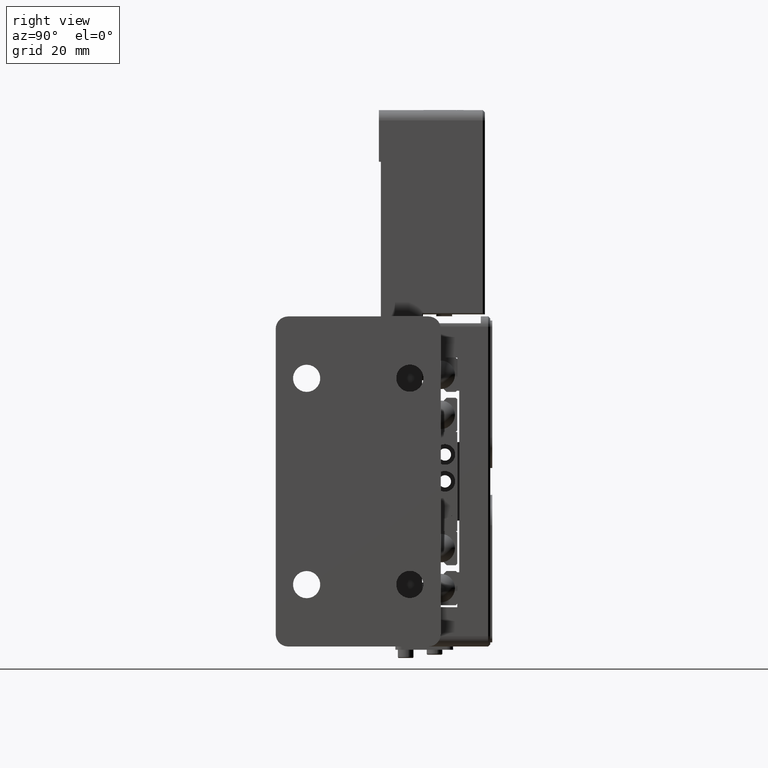
[diagram: clean part render]
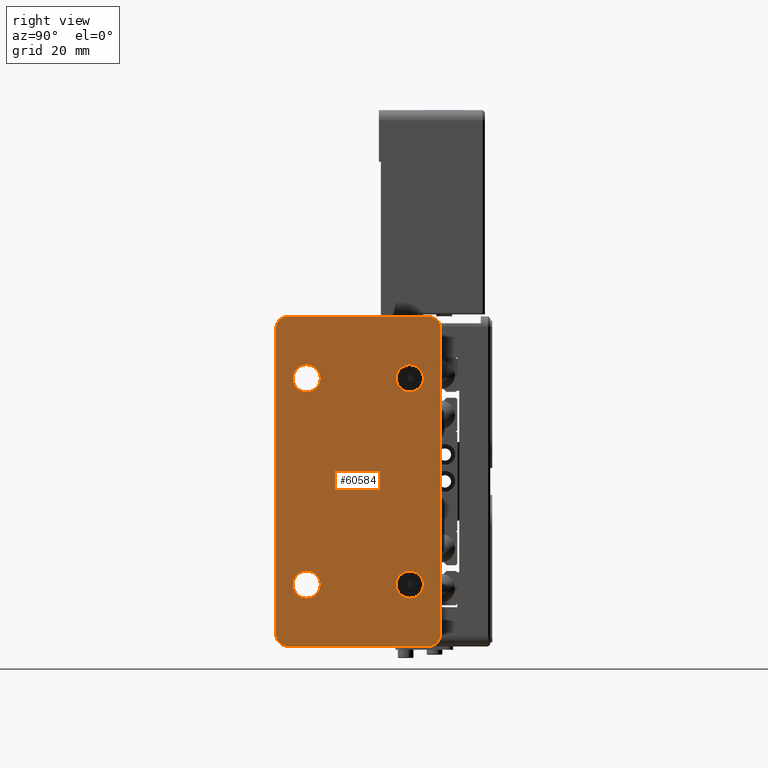
[diagram: same view with one face highlighted and labeled with its STEP entity id]
A machine part, right view. The second image highlights one B-rep face of the part: STEP entity #60584.
In plain terms, the highlighted planar face has unit normal (-1, -0, 0).
Its self-contained STEP definition (entity closure, byte-faithful):
#110 = EDGE_CURVE ( 'NONE', #48997, #32114, #14028, .T. ) ;
#151 = VECTOR ( 'NONE', #49959, 1000.000000000000000 ) ;
#416 = CARTESIAN_POINT ( 'NONE',  ( -12.49999999999999822, -6.938893903907228378E-15, 21.70000000000000284 ) ) ;
#755 = CARTESIAN_POINT ( 'NONE',  ( 12.49999999999999822, -6.938893903907228378E-15, -25.00000000000000000 ) ) ;
#987 = LINE ( 'NONE', #39867, #23303 ) ;
#1628 = VERTEX_POINT ( 'NONE', #27130 ) ;
#2229 = ORIENTED_EDGE ( 'NONE', *, *, #40906, .F. ) ;
#2564 = ORIENTED_EDGE ( 'NONE', *, *, #50122, .F. ) ;
#2676 = CARTESIAN_POINT ( 'NONE',  ( 12.49999999999999822, -6.938893903907228378E-15, -28.29999999999999716 ) ) ;
#2834 = AXIS2_PLACEMENT_3D ( 'NONE', #755, #24644, #20190 ) ;
#3120 = DIRECTION ( 'NONE',  ( 0.000000000000000000, 0.000000000000000000, 1.000000000000000000 ) ) ;
#3955 = VERTEX_POINT ( 'NONE', #40883 ) ;
#4061 = CARTESIAN_POINT ( 'NONE',  ( 12.49999999999999822, -6.938893903907228378E-15, -25.00000000000000000 ) ) ;
#4154 = DIRECTION ( 'NONE',  ( 1.000000000000000000, 0.000000000000000000, -0.000000000000000000 ) ) ;
#4227 = ORIENTED_EDGE ( 'NONE', *, *, #57404, .F. ) ;
#5014 = CIRCLE ( 'NONE', #15176, 3.299999999999997158 ) ;
#5629 = VERTEX_POINT ( 'NONE', #23974 ) ;
#7168 = CARTESIAN_POINT ( 'NONE',  ( -17.00000000000000000, 3.965082230804127755E-16, 37.00000000000000000 ) ) ;
#7601 = EDGE_CURVE ( 'NONE', #49861, #25425, #20919, .T. ) ;
#8532 = CIRCLE ( 'NONE', #13566, 3.000000000000002665 ) ;
#8555 = FACE_BOUND ( 'NONE', #31451, .T. ) ;
#8983 = DIRECTION ( 'NONE',  ( -0.000000000000000000, -1.000000000000000000, -0.000000000000000000 ) ) ;
#9343 = EDGE_LOOP ( 'NONE', ( #51467, #13681 ) ) ;
#11198 = DIRECTION ( 'NONE',  ( 0.000000000000000000, 0.000000000000000000, -1.000000000000000000 ) ) ;
#11582 = EDGE_CURVE ( 'NONE', #54206, #60113, #60587, .T. ) ;
#11826 = CARTESIAN_POINT ( 'NONE',  ( -12.49999999999999822, -6.938893903907228378E-15, -21.70000000000000284 ) ) ;
#11940 = CIRCLE ( 'NONE', #27174, 2.999999999999999112 ) ;
#12793 = CIRCLE ( 'NONE', #29082, 3.299999999999997158 ) ;
#13566 = AXIS2_PLACEMENT_3D ( 'NONE', #29982, #30909, #11198 ) ;
#13640 = FACE_OUTER_BOUND ( 'NONE', #25883, .T. ) ;
#13681 = ORIENTED_EDGE ( 'NONE', *, *, #40917, .F. ) ;
#14028 = LINE ( 'NONE', #47859, #59988 ) ;
#14334 = CARTESIAN_POINT ( 'NONE',  ( 20.00000000000000355, 7.072335265075964272E-15, 37.00000000000000000 ) ) ;
#14368 = ORIENTED_EDGE ( 'NONE', *, *, #22662, .F. ) ;
#15176 = AXIS2_PLACEMENT_3D ( 'NONE', #27328, #42334, #22546 ) ;
#15276 = DIRECTION ( 'NONE',  ( 0.000000000000000000, 1.000000000000000000, 0.000000000000000000 ) ) ;
#16048 = CARTESIAN_POINT ( 'NONE',  ( 17.00000000000000000, 3.673940397442059967E-15, 40.00000000000000000 ) ) ;
#16179 = CIRCLE ( 'NONE', #18211, 3.299999999999997158 ) ;
#17397 = AXIS2_PLACEMENT_3D ( 'NONE', #47260, #31605, #55882 ) ;
#17530 = DIRECTION ( 'NONE',  ( 0.000000000000000000, 0.000000000000000000, 1.000000000000000000 ) ) ;
#17651 = EDGE_CURVE ( 'NONE', #50420, #5629, #25460, .T. ) ;
#17919 = DIRECTION ( 'NONE',  ( -1.321694076934710155E-16, 1.000000000000000000, -0.000000000000000000 ) ) ;
#18211 = AXIS2_PLACEMENT_3D ( 'NONE', #51588, #22864, #3120 ) ;
#19354 = DIRECTION ( 'NONE',  ( -0.000000000000000000, -1.000000000000000000, -0.000000000000000000 ) ) ;
#19918 = CARTESIAN_POINT ( 'NONE',  ( 12.49999999999999822, -6.938893903907228378E-15, 21.70000000000000284 ) ) ;
#20190 = DIRECTION ( 'NONE',  ( 0.000000000000000000, 0.000000000000000000, 1.000000000000000000 ) ) ;
#20919 = LINE ( 'NONE', #24756, #151 ) ;
#21302 = DIRECTION ( 'NONE',  ( -0.000000000000000000, -0.000000000000000000, -1.000000000000000000 ) ) ;
#21343 = VERTEX_POINT ( 'NONE', #16048 ) ;
#21465 = EDGE_CURVE ( 'NONE', #48997, #49861, #31063, .T. ) ;
#21790 = DIRECTION ( 'NONE',  ( -1.000000000000000000, -1.321694076934710155E-16, 0.000000000000000000 ) ) ;
#22377 = DIRECTION ( 'NONE',  ( 1.000000000000000000, 1.321694076934710155E-16, 0.000000000000000000 ) ) ;
#22546 = DIRECTION ( 'NONE',  ( 0.000000000000000000, 0.000000000000000000, 1.000000000000000000 ) ) ;
#22662 = EDGE_CURVE ( 'NONE', #23669, #1628, #54268, .T. ) ;
#22812 = EDGE_LOOP ( 'NONE', ( #29782, #2229 ) ) ;
#22864 = DIRECTION ( 'NONE',  ( -0.000000000000000000, -1.000000000000000000, -0.000000000000000000 ) ) ;
#23303 = VECTOR ( 'NONE', #59324, 1000.000000000000000 ) ;
#23669 = VERTEX_POINT ( 'NONE', #416 ) ;
#23974 = CARTESIAN_POINT ( 'NONE',  ( 20.00000000000000355, 7.041140626651450083E-15, -37.00000000000000000 ) ) ;
#24644 = DIRECTION ( 'NONE',  ( -0.000000000000000000, -1.000000000000000000, -0.000000000000000000 ) ) ;
#24733 = VERTEX_POINT ( 'NONE', #54944 ) ;
#24756 = CARTESIAN_POINT ( 'NONE',  ( -20.00000000000000000, 0.000000000000000000, 40.00000000000000000 ) ) ;
#24847 = EDGE_CURVE ( 'NONE', #24733, #37660, #51033, .T. ) ;
#25425 = VERTEX_POINT ( 'NONE', #37897 ) ;
#25460 = LINE ( 'NONE', #40122, #54426 ) ;
#25883 = EDGE_LOOP ( 'NONE', ( #26882, #43480, #63097, #44398, #2564, #4227, #59365, #36729 ) ) ;
#26882 = ORIENTED_EDGE ( 'NONE', *, *, #21465, .F. ) ;
#27130 = CARTESIAN_POINT ( 'NONE',  ( -12.49999999999999822, -6.938893903907228378E-15, 28.29999999999999716 ) ) ;
#27174 = AXIS2_PLACEMENT_3D ( 'NONE', #7168, #41585, #21790 ) ;
#27328 = CARTESIAN_POINT ( 'NONE',  ( -12.49999999999999822, -6.938893903907228378E-15, -25.00000000000000000 ) ) ;
#27476 = AXIS2_PLACEMENT_3D ( 'NONE', #52659, #8983, #43080 ) ;
#28350 = DIRECTION ( 'NONE',  ( -0.000000000000000000, -1.000000000000000000, -0.000000000000000000 ) ) ;
#28736 = DIRECTION ( 'NONE',  ( -0.000000000000000000, -1.000000000000000000, -0.000000000000000000 ) ) ;
#28916 = DIRECTION ( 'NONE',  ( -1.000000000000000000, -1.836970198721029688E-16, 0.000000000000000000 ) ) ;
#29082 = AXIS2_PLACEMENT_3D ( 'NONE', #31851, #28350, #17530 ) ;
#29242 = CARTESIAN_POINT ( 'NONE',  ( -20.00000000000000000, 0.000000000000000000, 40.00000000000000000 ) ) ;
#29782 = ORIENTED_EDGE ( 'NONE', *, *, #24847, .F. ) ;
#29982 = CARTESIAN_POINT ( 'NONE',  ( 17.00000000000000000, 6.796789735267811767E-15, 37.00000000000000000 ) ) ;
#30909 = DIRECTION ( 'NONE',  ( -0.000000000000000000, 1.000000000000000000, -0.000000000000000000 ) ) ;
#30918 = EDGE_CURVE ( 'NONE', #36890, #3955, #12793, .T. ) ;
#30996 = CARTESIAN_POINT ( 'NONE',  ( -20.00000000000000000, -1.982541115402064617E-16, -37.00000000000000000 ) ) ;
#31063 = CIRCLE ( 'NONE', #48426, 2.999999999999999112 ) ;
#31451 = EDGE_LOOP ( 'NONE', ( #60494, #14368 ) ) ;
#31605 = DIRECTION ( 'NONE',  ( -0.000000000000000000, -1.000000000000000000, -0.000000000000000000 ) ) ;
#31851 = CARTESIAN_POINT ( 'NONE',  ( -12.49999999999999822, -6.938893903907228378E-15, -25.00000000000000000 ) ) ;
#32114 = VERTEX_POINT ( 'NONE', #58359 ) ;
#35491 = AXIS2_PLACEMENT_3D ( 'NONE', #53872, #15276, #45237 ) ;
#36714 = CARTESIAN_POINT ( 'NONE',  ( -17.00000000000000000, 0.000000000000000000, -37.00000000000000000 ) ) ;
#36729 = ORIENTED_EDGE ( 'NONE', *, *, #7601, .F. ) ;
#36890 = VERTEX_POINT ( 'NONE', #11826 ) ;
#37660 = VERTEX_POINT ( 'NONE', #19918 ) ;
#37897 = CARTESIAN_POINT ( 'NONE',  ( -20.00000000000000000, -7.222237291452134449E-32, 37.00000000000000000 ) ) ;
#39143 = FACE_BOUND ( 'NONE', #22812, .T. ) ;
#39867 = CARTESIAN_POINT ( 'NONE',  ( 0.000000000000000000, 5.510910596163087583E-16, 40.00000000000000000 ) ) ;
#40122 = CARTESIAN_POINT ( 'NONE',  ( 20.00000000000000000, 7.347880794884118356E-15, 40.00000000000000000 ) ) ;
#40786 = EDGE_CURVE ( 'NONE', #5629, #32114, #49786, .T. ) ;
#40883 = CARTESIAN_POINT ( 'NONE',  ( -12.49999999999999822, -6.938893903907228378E-15, -28.29999999999999716 ) ) ;
#40906 = EDGE_CURVE ( 'NONE', #37660, #24733, #16179, .T. ) ;
#40917 = EDGE_CURVE ( 'NONE', #3955, #36890, #5014, .T. ) ;
#41585 = DIRECTION ( 'NONE',  ( -1.321694076934710155E-16, 1.000000000000000000, 0.000000000000000000 ) ) ;
#42192 = EDGE_CURVE ( 'NONE', #25425, #50871, #11940, .T. ) ;
#42334 = DIRECTION ( 'NONE',  ( -0.000000000000000000, -1.000000000000000000, -0.000000000000000000 ) ) ;
#42679 = FACE_BOUND ( 'NONE', #61775, .T. ) ;
#43080 = DIRECTION ( 'NONE',  ( 0.000000000000000000, 0.000000000000000000, 1.000000000000000000 ) ) ;
#43480 = ORIENTED_EDGE ( 'NONE', *, *, #110, .T. ) ;
#43942 = PLANE ( 'NONE',  #56188 ) ;
#44398 = ORIENTED_EDGE ( 'NONE', *, *, #17651, .F. ) ;
#44589 = CIRCLE ( 'NONE', #2834, 3.299999999999997158 ) ;
#45237 = DIRECTION ( 'NONE',  ( 0.000000000000000000, 0.000000000000000000, 1.000000000000000000 ) ) ;
#45422 = CARTESIAN_POINT ( 'NONE',  ( 12.49999999999999822, -6.938893903907228378E-15, -21.70000000000000284 ) ) ;
#47054 = ORIENTED_EDGE ( 'NONE', *, *, #11582, .F. ) ;
#47260 = CARTESIAN_POINT ( 'NONE',  ( 12.49999999999999822, -6.938893903907228378E-15, 25.00000000000000000 ) ) ;
#47859 = CARTESIAN_POINT ( 'NONE',  ( 0.000000000000000000, 5.510910596163087583E-16, -40.00000000000000000 ) ) ;
#47927 = CIRCLE ( 'NONE', #27476, 3.299999999999997158 ) ;
#48237 = DIRECTION ( 'NONE',  ( 0.000000000000000000, 0.000000000000000000, 1.000000000000000000 ) ) ;
#48426 = AXIS2_PLACEMENT_3D ( 'NONE', #36714, #17919, #22377 ) ;
#48437 = EDGE_CURVE ( 'NONE', #60113, #54206, #44589, .T. ) ;
#48559 = ORIENTED_EDGE ( 'NONE', *, *, #48437, .F. ) ;
#48997 = VERTEX_POINT ( 'NONE', #51229 ) ;
#49786 = CIRCLE ( 'NONE', #35491, 3.000000000000002665 ) ;
#49861 = VERTEX_POINT ( 'NONE', #30996 ) ;
#49959 = DIRECTION ( 'NONE',  ( 0.000000000000000000, 0.000000000000000000, 1.000000000000000000 ) ) ;
#50122 = EDGE_CURVE ( 'NONE', #21343, #50420, #8532, .T. ) ;
#50420 = VERTEX_POINT ( 'NONE', #14334 ) ;
#50871 = VERTEX_POINT ( 'NONE', #52535 ) ;
#51033 = CIRCLE ( 'NONE', #17397, 3.299999999999997158 ) ;
#51229 = CARTESIAN_POINT ( 'NONE',  ( -17.00000000000000000, 2.755455298081543792E-16, -40.00000000000000000 ) ) ;
#51467 = ORIENTED_EDGE ( 'NONE', *, *, #30918, .F. ) ;
#51588 = CARTESIAN_POINT ( 'NONE',  ( 12.49999999999999822, -6.938893903907228378E-15, 25.00000000000000000 ) ) ;
#52535 = CARTESIAN_POINT ( 'NONE',  ( -17.00000000000000000, 4.737996413483607916E-16, 40.00000000000000000 ) ) ;
#52559 = DIRECTION ( 'NONE',  ( -1.836970198721029688E-16, 1.000000000000000000, 0.000000000000000000 ) ) ;
#52659 = CARTESIAN_POINT ( 'NONE',  ( -12.49999999999999822, -6.938893903907228378E-15, 25.00000000000000000 ) ) ;
#52692 = CARTESIAN_POINT ( 'NONE',  ( -12.49999999999999822, -6.938893903907228378E-15, 25.00000000000000000 ) ) ;
#53872 = CARTESIAN_POINT ( 'NONE',  ( 17.00000000000000000, 6.938893903907228378E-15, -37.00000000000000000 ) ) ;
#54206 = VERTEX_POINT ( 'NONE', #45422 ) ;
#54268 = CIRCLE ( 'NONE', #62417, 3.299999999999997158 ) ;
#54426 = VECTOR ( 'NONE', #21302, 1000.000000000000000 ) ;
#54944 = CARTESIAN_POINT ( 'NONE',  ( 12.49999999999999822, -6.938893903907228378E-15, 28.29999999999999716 ) ) ;
#55882 = DIRECTION ( 'NONE',  ( 0.000000000000000000, 0.000000000000000000, 1.000000000000000000 ) ) ;
#56188 = AXIS2_PLACEMENT_3D ( 'NONE', #29242, #52559, #28916 ) ;
#57404 = EDGE_CURVE ( 'NONE', #50871, #21343, #987, .T. ) ;
#57634 = DIRECTION ( 'NONE',  ( 0.000000000000000000, 0.000000000000000000, 1.000000000000000000 ) ) ;
#58359 = CARTESIAN_POINT ( 'NONE',  ( 17.00000000000000000, 3.744992481761769061E-15, -40.00000000000000000 ) ) ;
#58613 = FACE_BOUND ( 'NONE', #9343, .T. ) ;
#59324 = DIRECTION ( 'NONE',  ( 1.000000000000000000, 0.000000000000000000, -0.000000000000000000 ) ) ;
#59365 = ORIENTED_EDGE ( 'NONE', *, *, #42192, .F. ) ;
#59988 = VECTOR ( 'NONE', #4154, 1000.000000000000000 ) ;
#60113 = VERTEX_POINT ( 'NONE', #2676 ) ;
#60494 = ORIENTED_EDGE ( 'NONE', *, *, #62667, .F. ) ;
#60584 = ADVANCED_FACE ( 'NONE', ( #13640, #42679, #39143, #58613, #8555 ), #43942, .F. ) ;
#60587 = CIRCLE ( 'NONE', #62648, 3.299999999999997158 ) ;
#61775 = EDGE_LOOP ( 'NONE', ( #47054, #48559 ) ) ;
#62417 = AXIS2_PLACEMENT_3D ( 'NONE', #52692, #28736, #48237 ) ;
#62648 = AXIS2_PLACEMENT_3D ( 'NONE', #4061, #19354, #57634 ) ;
#62667 = EDGE_CURVE ( 'NONE', #1628, #23669, #47927, .T. ) ;
#63097 = ORIENTED_EDGE ( 'NONE', *, *, #40786, .F. ) ;